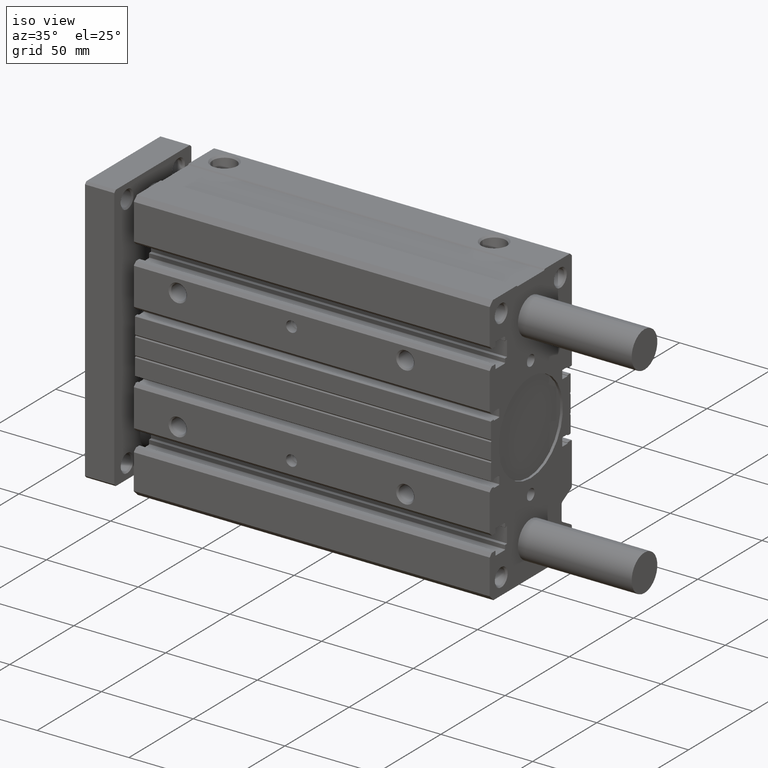
[diagram: clean part render]
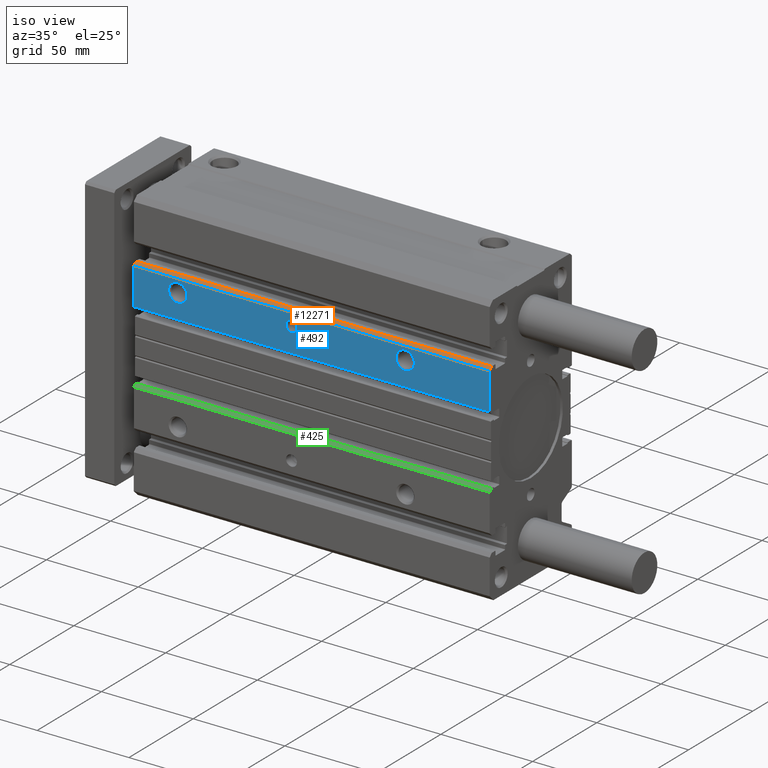
[diagram: same view with three faces highlighted in distinct colors, each labeled with its STEP entity id]
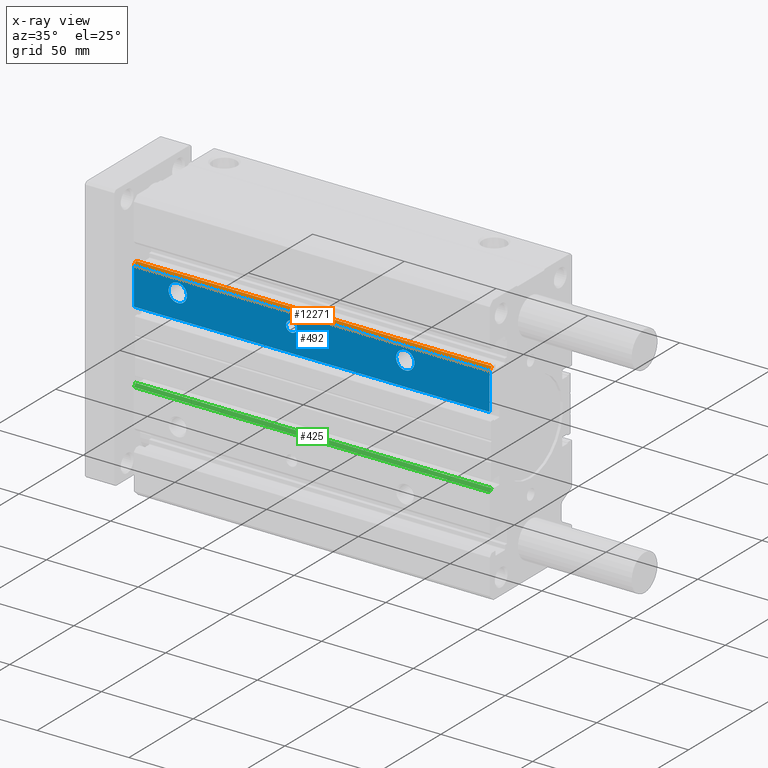
[diagram: x-ray of the same camera — body ghosted, the three highlighted faces saturated]
A machine part, iso view with three faces highlighted in distinct colors.
The next image is the same camera in x-ray (body ghosted, the three faces saturated) — at least one of them is partly hidden behind the body in this view.
Their STEP definitions:

[orange] entity #12271 — the highlighted planar face has unit normal (0, -0.7071, 0.7071).
#204 = VERTEX_POINT ( 'NONE', #6987 ) ;
#546 = DIRECTION ( 'NONE',  ( -0.000000000000000000, 0.7071063938171109342, 0.7071071685557719366 ) ) ;
#599 = LINE ( 'NONE', #6646, #2008 ) ;
#695 = ORIENTED_EDGE ( 'NONE', *, *, #5424, .T. ) ;
#1746 = DIRECTION ( 'NONE',  ( 0.000000000000000000, -0.7071063938171109342, -0.7071071685557719366 ) ) ;
#2008 = VECTOR ( 'NONE', #12588, 1000.000000000000000 ) ;
#2097 = VERTEX_POINT ( 'NONE', #5312 ) ;
#2902 = LINE ( 'NONE', #13091, #9699 ) ;
#3102 = VERTEX_POINT ( 'NONE', #12554 ) ;
#4987 = ORIENTED_EDGE ( 'NONE', *, *, #9444, .F. ) ;
#5312 = CARTESIAN_POINT ( 'NONE',  ( 194.0000000000000000, -30.30000068245000122, 41.70000180609999774 ) ) ;
#5424 = EDGE_CURVE ( 'NONE', #2097, #204, #7954, .T. ) ;
#5536 = LINE ( 'NONE', #9629, #9748 ) ;
#5903 = EDGE_CURVE ( 'NONE', #204, #11154, #2902, .T. ) ;
#5935 = CARTESIAN_POINT ( 'NONE',  ( 0.000000000000000000, -32.00000151994999698, 39.99999910599999708 ) ) ;
#6646 = CARTESIAN_POINT ( 'NONE',  ( 0.000000000000000000, -32.00000151994999698, 39.99999910599999708 ) ) ;
#6954 = DIRECTION ( 'NONE',  ( 0.000000000000000000, -0.7071063938171109342, -0.7071071685557719366 ) ) ;
#6987 = CARTESIAN_POINT ( 'NONE',  ( 0.000000000000000000, -30.30000068245000122, 41.70000180609999774 ) ) ;
#7514 = ORIENTED_EDGE ( 'NONE', *, *, #5903, .T. ) ;
#7747 = EDGE_CURVE ( 'NONE', #3102, #2097, #5536, .T. ) ;
#7850 = FACE_OUTER_BOUND ( 'NONE', #9895, .T. ) ;
#7887 = CARTESIAN_POINT ( 'NONE',  ( 0.000000000000000000, -30.30000068245000122, 41.70000180609999774 ) ) ;
#7954 = LINE ( 'NONE', #7887, #8450 ) ;
#8450 = VECTOR ( 'NONE', #10993, 1000.000000000000000 ) ;
#9444 = EDGE_CURVE ( 'NONE', #3102, #11154, #599, .T. ) ;
#9629 = CARTESIAN_POINT ( 'NONE',  ( 194.0000000000000000, -32.00000151994999698, 39.99999910599999708 ) ) ;
#9699 = VECTOR ( 'NONE', #6954, 1000.000000000000114 ) ;
#9748 = VECTOR ( 'NONE', #546, 1000.000000000000114 ) ;
#9895 = EDGE_LOOP ( 'NONE', ( #7514, #4987, #10839, #695 ) ) ;
#10839 = ORIENTED_EDGE ( 'NONE', *, *, #7747, .T. ) ;
#10951 = CARTESIAN_POINT ( 'NONE',  ( 0.000000000000000000, -32.00000151994999698, 39.99999910599999708 ) ) ;
#10993 = DIRECTION ( 'NONE',  ( -1.000000000000000000, -0.000000000000000000, -0.000000000000000000 ) ) ;
#11154 = VERTEX_POINT ( 'NONE', #5935 ) ;
#11349 = AXIS2_PLACEMENT_3D ( 'NONE', #10951, #11822, #1746 ) ;
#11822 = DIRECTION ( 'NONE',  ( 0.000000000000000000, -0.7071071685557719366, 0.7071063938171109342 ) ) ;
#12271 = ADVANCED_FACE ( 'NONE', ( #7850 ), #13067, .T. ) ;
#12554 = CARTESIAN_POINT ( 'NONE',  ( 194.0000000000000000, -32.00000151994999698, 39.99999910599999708 ) ) ;
#12588 = DIRECTION ( 'NONE',  ( -1.000000000000000000, -0.000000000000000000, -0.000000000000000000 ) ) ;
#13067 = PLANE ( 'NONE',  #11349 ) ;
#13091 = CARTESIAN_POINT ( 'NONE',  ( 0.000000000000000000, -32.00000151994999698, 39.99999910599999708 ) ) ;

[blue] entity #492 — the highlighted planar face has unit normal (0, -1, 0).
#113 = CARTESIAN_POINT ( 'NONE',  ( 148.0000000000000000, -32.00000151994999698, 27.99999848009274928 ) ) ;
#205 = AXIS2_PLACEMENT_3D ( 'NONE', #6928, #7915, #1810 ) ;
#415 = CARTESIAN_POINT ( 'NONE',  ( 148.0000000000000000, -32.00000151994999698, 38.00000151990725783 ) ) ;
#492 = ADVANCED_FACE ( 'NONE', ( #596, #2651, #6775, #3658 ), #6705, .T. ) ;
#580 = CARTESIAN_POINT ( 'NONE',  ( 148.0000000000000000, -32.00000151994999698, 33.00000000000000000 ) ) ;
#596 = FACE_BOUND ( 'NONE', #10195, .T. ) ;
#599 = LINE ( 'NONE', #6646, #2008 ) ;
#656 = VERTEX_POINT ( 'NONE', #415 ) ;
#879 = CARTESIAN_POINT ( 'NONE',  ( 86.00000000000000000, -32.00000151994999698, 33.00000000000000000 ) ) ;
#1283 = AXIS2_PLACEMENT_3D ( 'NONE', #4579, #8614, #10798 ) ;
#1284 = EDGE_CURVE ( 'NONE', #5641, #656, #7660, .T. ) ;
#1333 = VERTEX_POINT ( 'NONE', #11698 ) ;
#1410 = EDGE_LOOP ( 'NONE', ( #8193, #7928 ) ) ;
#1810 = DIRECTION ( 'NONE',  ( 0.000000000000000000, 0.000000000000000000, -1.000000000000000000 ) ) ;
#2008 = VECTOR ( 'NONE', #12588, 1000.000000000000000 ) ;
#2032 = CIRCLE ( 'NONE', #7983, 5.000001519907253389 ) ;
#2129 = EDGE_LOOP ( 'NONE', ( #10804, #7891, #9426, #5756 ) ) ;
#2365 = AXIS2_PLACEMENT_3D ( 'NONE', #8718, #7610, #12751 ) ;
#2415 = EDGE_CURVE ( 'NONE', #6281, #3102, #6351, .T. ) ;
#2558 = EDGE_CURVE ( 'NONE', #1333, #7911, #10824, .T. ) ;
#2623 = CARTESIAN_POINT ( 'NONE',  ( 148.0000000000000000, -32.00000151994999698, 33.00000000000000000 ) ) ;
#2651 = FACE_BOUND ( 'NONE', #1410, .T. ) ;
#2824 = DIRECTION ( 'NONE',  ( 0.000000000000000000, -1.000000000000000000, 0.000000000000000000 ) ) ;
#3102 = VERTEX_POINT ( 'NONE', #12554 ) ;
#3293 = DIRECTION ( 'NONE',  ( -0.000000000000000000, 0.000000000000000000, 1.000000000000000000 ) ) ;
#3573 = DIRECTION ( 'NONE',  ( 0.000000000000000000, 0.000000000000000000, -1.000000000000000000 ) ) ;
#3647 = VECTOR ( 'NONE', #3293, 1000.000000000000000 ) ;
#3658 = FACE_OUTER_BOUND ( 'NONE', #2129, .T. ) ;
#3962 = EDGE_CURVE ( 'NONE', #11154, #9409, #11261, .T. ) ;
#3963 = DIRECTION ( 'NONE',  ( -1.000000000000000000, -0.000000000000000000, -0.000000000000000000 ) ) ;
#4121 = DIRECTION ( 'NONE',  ( 0.000000000000000000, -0.000000000000000000, -1.000000000000000000 ) ) ;
#4259 = CIRCLE ( 'NONE', #6802, 5.000001519907253389 ) ;
#4282 = VERTEX_POINT ( 'NONE', #9808 ) ;
#4491 = CARTESIAN_POINT ( 'NONE',  ( 194.0000000000000000, -32.00000151994999698, 19.79999989270000071 ) ) ;
#4493 = AXIS2_PLACEMENT_3D ( 'NONE', #2623, #2824, #12881 ) ;
#4579 = CARTESIAN_POINT ( 'NONE',  ( 0.000000000000000000, -32.00000151994999698, 19.79999989270000071 ) ) ;
#4892 = LINE ( 'NONE', #10175, #5719 ) ;
#4942 = DIRECTION ( 'NONE',  ( 0.000000000000000000, 0.000000000000000000, -1.000000000000000000 ) ) ;
#5071 = ORIENTED_EDGE ( 'NONE', *, *, #12327, .F. ) ;
#5192 = EDGE_LOOP ( 'NONE', ( #5071, #12657 ) ) ;
#5519 = CIRCLE ( 'NONE', #205, 5.000001519907253389 ) ;
#5641 = VERTEX_POINT ( 'NONE', #113 ) ;
#5719 = VECTOR ( 'NONE', #3963, 1000.000000000000000 ) ;
#5756 = ORIENTED_EDGE ( 'NONE', *, *, #9444, .T. ) ;
#5799 = CARTESIAN_POINT ( 'NONE',  ( 24.00000000000000000, -32.00000151994999698, 27.99999848009274928 ) ) ;
#5935 = CARTESIAN_POINT ( 'NONE',  ( 0.000000000000000000, -32.00000151994999698, 39.99999910599999708 ) ) ;
#6190 = DIRECTION ( 'NONE',  ( 0.000000000000000000, -1.000000000000000000, 0.000000000000000000 ) ) ;
#6250 = CARTESIAN_POINT ( 'NONE',  ( 24.00000000000000000, -32.00000151994999698, 33.00000000000000000 ) ) ;
#6281 = VERTEX_POINT ( 'NONE', #9648 ) ;
#6303 = VECTOR ( 'NONE', #4121, 1000.000000000000000 ) ;
#6351 = LINE ( 'NONE', #4491, #3647 ) ;
#6506 = CARTESIAN_POINT ( 'NONE',  ( 0.000000000000000000, -32.00000151994999698, 19.79999989270000427 ) ) ;
#6646 = CARTESIAN_POINT ( 'NONE',  ( 0.000000000000000000, -32.00000151994999698, 39.99999910599999708 ) ) ;
#6705 = PLANE ( 'NONE',  #1283 ) ;
#6775 = FACE_BOUND ( 'NONE', #5192, .T. ) ;
#6802 = AXIS2_PLACEMENT_3D ( 'NONE', #580, #12637, #3573 ) ;
#6928 = CARTESIAN_POINT ( 'NONE',  ( 24.00000000000000000, -32.00000151994999698, 33.00000000000000000 ) ) ;
#7002 = EDGE_CURVE ( 'NONE', #6281, #9409, #4892, .T. ) ;
#7426 = EDGE_CURVE ( 'NONE', #4282, #8960, #5519, .T. ) ;
#7610 = DIRECTION ( 'NONE',  ( -0.000000000000000000, -1.000000000000000000, -0.000000000000000000 ) ) ;
#7660 = CIRCLE ( 'NONE', #4493, 5.000001519907253389 ) ;
#7891 = ORIENTED_EDGE ( 'NONE', *, *, #7002, .F. ) ;
#7911 = VERTEX_POINT ( 'NONE', #8037 ) ;
#7915 = DIRECTION ( 'NONE',  ( 0.000000000000000000, -1.000000000000000000, 0.000000000000000000 ) ) ;
#7928 = ORIENTED_EDGE ( 'NONE', *, *, #2558, .F. ) ;
#7983 = AXIS2_PLACEMENT_3D ( 'NONE', #6250, #6190, #10417 ) ;
#8037 = CARTESIAN_POINT ( 'NONE',  ( 86.00000000000000000, -32.00000151994999698, 30.00000000000000000 ) ) ;
#8101 = EDGE_CURVE ( 'NONE', #656, #5641, #4259, .T. ) ;
#8193 = ORIENTED_EDGE ( 'NONE', *, *, #11120, .F. ) ;
#8614 = DIRECTION ( 'NONE',  ( 0.000000000000000000, -1.000000000000000000, 0.000000000000000000 ) ) ;
#8718 = CARTESIAN_POINT ( 'NONE',  ( 86.00000000000000000, -32.00000151994999698, 33.00000000000000000 ) ) ;
#8960 = VERTEX_POINT ( 'NONE', #5799 ) ;
#9297 = ORIENTED_EDGE ( 'NONE', *, *, #1284, .F. ) ;
#9409 = VERTEX_POINT ( 'NONE', #6506 ) ;
#9426 = ORIENTED_EDGE ( 'NONE', *, *, #2415, .T. ) ;
#9444 = EDGE_CURVE ( 'NONE', #3102, #11154, #599, .T. ) ;
#9483 = CARTESIAN_POINT ( 'NONE',  ( 0.000000000000000000, -32.00000151994999698, 19.79999989270000071 ) ) ;
#9648 = CARTESIAN_POINT ( 'NONE',  ( 194.0000000000000000, -32.00000151994999698, 19.79999989270000427 ) ) ;
#9808 = CARTESIAN_POINT ( 'NONE',  ( 24.00000000000000000, -32.00000151994999698, 38.00000151990725783 ) ) ;
#9832 = DIRECTION ( 'NONE',  ( -0.000000000000000000, -1.000000000000000000, -0.000000000000000000 ) ) ;
#9873 = CIRCLE ( 'NONE', #10293, 3.000000000000002665 ) ;
#10175 = CARTESIAN_POINT ( 'NONE',  ( 0.000000000000000000, -32.00000151994999698, 19.79999989270000071 ) ) ;
#10195 = EDGE_LOOP ( 'NONE', ( #9297, #11726 ) ) ;
#10293 = AXIS2_PLACEMENT_3D ( 'NONE', #879, #9832, #4942 ) ;
#10417 = DIRECTION ( 'NONE',  ( 0.000000000000000000, 0.000000000000000000, -1.000000000000000000 ) ) ;
#10798 = DIRECTION ( 'NONE',  ( 0.000000000000000000, -0.000000000000000000, -1.000000000000000000 ) ) ;
#10804 = ORIENTED_EDGE ( 'NONE', *, *, #3962, .T. ) ;
#10824 = CIRCLE ( 'NONE', #2365, 3.000000000000002665 ) ;
#11120 = EDGE_CURVE ( 'NONE', #7911, #1333, #9873, .T. ) ;
#11154 = VERTEX_POINT ( 'NONE', #5935 ) ;
#11261 = LINE ( 'NONE', #9483, #6303 ) ;
#11698 = CARTESIAN_POINT ( 'NONE',  ( 86.00000000000000000, -32.00000151994999698, 36.00000000000000711 ) ) ;
#11726 = ORIENTED_EDGE ( 'NONE', *, *, #8101, .F. ) ;
#12327 = EDGE_CURVE ( 'NONE', #8960, #4282, #2032, .T. ) ;
#12554 = CARTESIAN_POINT ( 'NONE',  ( 194.0000000000000000, -32.00000151994999698, 39.99999910599999708 ) ) ;
#12588 = DIRECTION ( 'NONE',  ( -1.000000000000000000, -0.000000000000000000, -0.000000000000000000 ) ) ;
#12637 = DIRECTION ( 'NONE',  ( 0.000000000000000000, -1.000000000000000000, 0.000000000000000000 ) ) ;
#12657 = ORIENTED_EDGE ( 'NONE', *, *, #7426, .F. ) ;
#12751 = DIRECTION ( 'NONE',  ( 0.000000000000000000, 0.000000000000000000, -1.000000000000000000 ) ) ;
#12881 = DIRECTION ( 'NONE',  ( 0.000000000000000000, 0.000000000000000000, -1.000000000000000000 ) ) ;

[green] entity #425 — the highlighted planar face has unit normal (0, -0.7071, 0.7071).
#144 = CARTESIAN_POINT ( 'NONE',  ( 194.0000000000000000, -30.50000034275000260, -18.30000057810000058 ) ) ;
#425 = ADVANCED_FACE ( 'NONE', ( #10863 ), #6841, .T. ) ;
#467 = DIRECTION ( 'NONE',  ( 0.000000000000000000, -0.7071072202053692024, -0.7071063421674532723 ) ) ;
#1256 = CARTESIAN_POINT ( 'NONE',  ( 194.0000000000000000, -32.00000151994999698, -19.79999989270000071 ) ) ;
#1297 = EDGE_CURVE ( 'NONE', #12737, #3650, #2689, .T. ) ;
#1546 = CARTESIAN_POINT ( 'NONE',  ( 0.000000000000000000, -32.00000151994999698, -19.79999989270000071 ) ) ;
#1754 = VERTEX_POINT ( 'NONE', #8638 ) ;
#2689 = LINE ( 'NONE', #7860, #7458 ) ;
#2758 = DIRECTION ( 'NONE',  ( -1.000000000000000000, -0.000000000000000000, -0.000000000000000000 ) ) ;
#3181 = LINE ( 'NONE', #8351, #12840 ) ;
#3520 = DIRECTION ( 'NONE',  ( 0.000000000000000000, -0.7071063421674532723, 0.7071072202053692024 ) ) ;
#3650 = VERTEX_POINT ( 'NONE', #7582 ) ;
#4233 = ORIENTED_EDGE ( 'NONE', *, *, #1297, .F. ) ;
#4747 = DIRECTION ( 'NONE',  ( 0.000000000000000000, -0.7071072202053692024, -0.7071063421674532723 ) ) ;
#6073 = VECTOR ( 'NONE', #4747, 1000.000000000000000 ) ;
#6229 = ORIENTED_EDGE ( 'NONE', *, *, #12114, .T. ) ;
#6700 = LINE ( 'NONE', #10725, #6858 ) ;
#6841 = PLANE ( 'NONE',  #9384 ) ;
#6858 = VECTOR ( 'NONE', #12973, 1000.000000000000000 ) ;
#7102 = DIRECTION ( 'NONE',  ( -0.000000000000000000, 0.7071072202053692024, 0.7071063421674532723 ) ) ;
#7458 = VECTOR ( 'NONE', #2758, 1000.000000000000000 ) ;
#7582 = CARTESIAN_POINT ( 'NONE',  ( 0.000000000000000000, -32.00000151994999698, -19.79999989270000071 ) ) ;
#7860 = CARTESIAN_POINT ( 'NONE',  ( 0.000000000000000000, -32.00000151994999698, -19.79999989270000071 ) ) ;
#8214 = ORIENTED_EDGE ( 'NONE', *, *, #12752, .T. ) ;
#8351 = CARTESIAN_POINT ( 'NONE',  ( 194.0000000000000000, -32.00000151994999698, -19.79999989270000071 ) ) ;
#8638 = CARTESIAN_POINT ( 'NONE',  ( 0.000000000000000000, -30.50000034275000260, -18.30000057810000058 ) ) ;
#9384 = AXIS2_PLACEMENT_3D ( 'NONE', #12779, #3520, #467 ) ;
#9896 = EDGE_LOOP ( 'NONE', ( #6229, #4233, #8214, #13062 ) ) ;
#10560 = LINE ( 'NONE', #1546, #6073 ) ;
#10725 = CARTESIAN_POINT ( 'NONE',  ( 0.000000000000000000, -30.50000034275000260, -18.30000057810000058 ) ) ;
#10863 = FACE_OUTER_BOUND ( 'NONE', #9896, .T. ) ;
#11171 = VERTEX_POINT ( 'NONE', #144 ) ;
#12114 = EDGE_CURVE ( 'NONE', #1754, #3650, #10560, .T. ) ;
#12737 = VERTEX_POINT ( 'NONE', #1256 ) ;
#12752 = EDGE_CURVE ( 'NONE', #12737, #11171, #3181, .T. ) ;
#12779 = CARTESIAN_POINT ( 'NONE',  ( 0.000000000000000000, -32.00000151994999698, -19.79999989270000071 ) ) ;
#12840 = VECTOR ( 'NONE', #7102, 1000.000000000000000 ) ;
#12973 = DIRECTION ( 'NONE',  ( -1.000000000000000000, -0.000000000000000000, -0.000000000000000000 ) ) ;
#13062 = ORIENTED_EDGE ( 'NONE', *, *, #13083, .T. ) ;
#13083 = EDGE_CURVE ( 'NONE', #11171, #1754, #6700, .T. ) ;